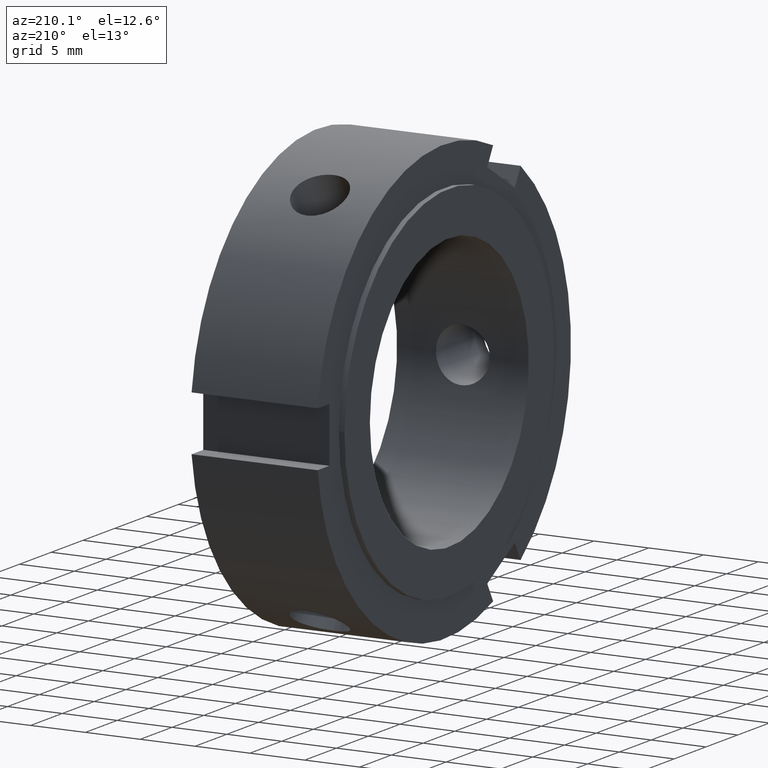
[diagram: clean part render]
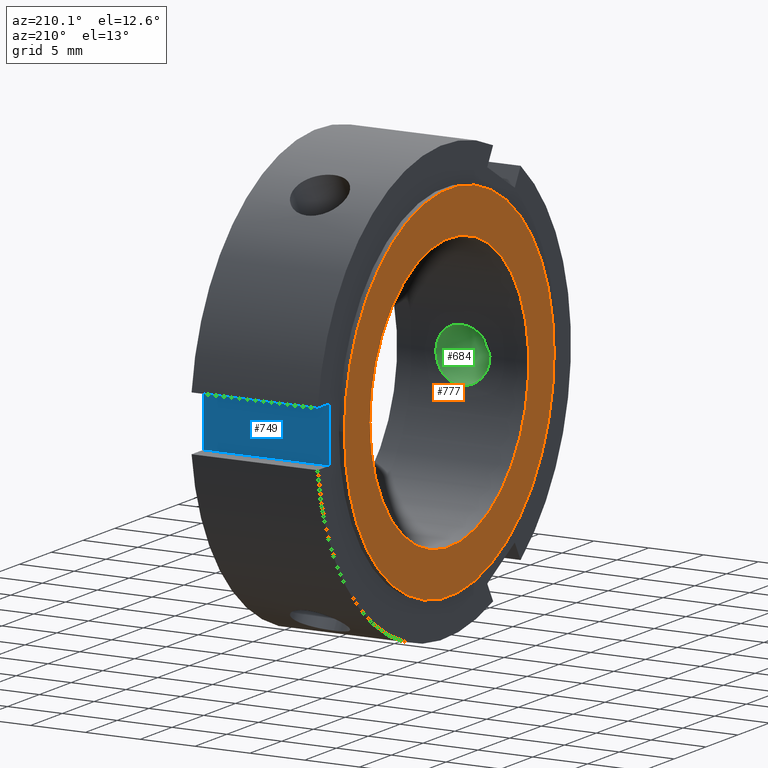
[diagram: same view with three faces highlighted in distinct colors, each labeled with its STEP entity id]
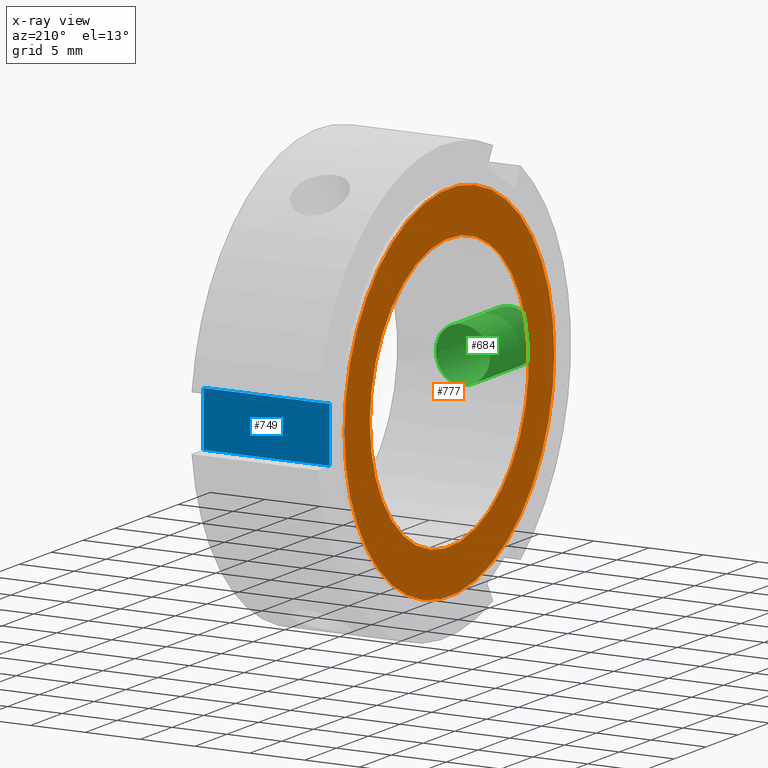
[diagram: x-ray of the same camera — body ghosted, the three highlighted faces saturated]
A machine part, auxiliary view with three faces highlighted in distinct colors.
The next image is the same camera in x-ray (body ghosted, the three faces saturated) — at least one of them is partly hidden behind the body in this view.
Their STEP definitions:

[orange] entity #777 — the highlighted planar face has unit normal (-1, 0, 0).
#750=CARTESIAN_POINT('',(-3.687082E-015,14.500000000000000,0.0));
#751=DIRECTION('',(-1.0,0.0,0.0));
#752=DIRECTION('',(0.0,0.0,1.0));
#753=AXIS2_PLACEMENT_3D('',#750,#751,#752);
#754=PLANE('',#753);
#755=CARTESIAN_POINT('',(-4.440892E-015,16.500000000000000,0.0));
#756=VERTEX_POINT('',#755);
#757=CARTESIAN_POINT('',(-4.440892E-015,0.0,0.0));
#758=DIRECTION('',(1.0,0.0,0.0));
#759=DIRECTION('',(0.0,1.0,0.0));
#760=AXIS2_PLACEMENT_3D('',#757,#758,#759);
#761=CIRCLE('',#760,16.500000000000000);
#762=EDGE_CURVE('',#756,#756,#761,.T.);
#763=ORIENTED_EDGE('',*,*,#762,.F.);
#764=EDGE_LOOP('',(#763));
#765=FACE_OUTER_BOUND('',#764,.T.);
#766=CARTESIAN_POINT('',(-2.933272E-015,12.500000000000000,0.0));
#767=VERTEX_POINT('',#766);
#768=CARTESIAN_POINT('',(-2.933851E-015,0.0,0.0));
#769=DIRECTION('',(1.0,0.0,0.0));
#770=DIRECTION('',(0.0,1.0,0.0));
#771=AXIS2_PLACEMENT_3D('',#768,#769,#770);
#772=CIRCLE('',#771,12.500000000000000);
#773=EDGE_CURVE('',#767,#767,#772,.T.);
#774=ORIENTED_EDGE('',*,*,#773,.T.);
#775=EDGE_LOOP('',(#774));
#776=FACE_BOUND('',#775,.T.);
#777=ADVANCED_FACE('',(#765,#776),#754,.T.);

[blue] entity #749 — the highlighted planar face has unit normal (0, -1, 0).
#465=CARTESIAN_POINT('',(11.999999999999996,18.0,-2.500000000000000));
#466=VERTEX_POINT('',#465);
#473=CARTESIAN_POINT('',(11.999999999999996,18.0,2.500000000000000));
#474=VERTEX_POINT('',#473);
#475=CARTESIAN_POINT('',(11.999999999999996,18.0,-2.499999999999999));
#476=DIRECTION('',(0.0,0.0,1.0));
#477=VECTOR('',#476,4.999999999999998);
#478=LINE('',#475,#477);
#479=EDGE_CURVE('',#466,#474,#478,.T.);
#690=CARTESIAN_POINT('',(0.499999999999998,18.0,-2.500000000000000));
#691=VERTEX_POINT('',#690);
#698=CARTESIAN_POINT('',(11.999999999999996,18.0,-2.500000000000000));
#699=DIRECTION('',(-1.0,0.0,0.0));
#700=VECTOR('',#699,11.500000000000000);
#701=LINE('',#698,#700);
#702=EDGE_CURVE('',#466,#691,#701,.T.);
#714=CARTESIAN_POINT('',(0.499999999999998,18.0,2.500000000000000));
#715=VERTEX_POINT('',#714);
#724=CARTESIAN_POINT('',(11.999999999999996,18.0,2.500000000000000));
#725=DIRECTION('',(-1.0,0.0,0.0));
#726=VECTOR('',#725,11.500000000000000);
#727=LINE('',#724,#726);
#728=EDGE_CURVE('',#474,#715,#727,.T.);
#733=CARTESIAN_POINT('',(11.999999999999996,18.0,2.500000000000000));
#734=DIRECTION('',(0.0,-1.0,0.0));
#735=DIRECTION('',(0.0,0.0,-1.0));
#736=AXIS2_PLACEMENT_3D('',#733,#734,#735);
#737=PLANE('',#736);
#738=CARTESIAN_POINT('',(0.499999999999997,18.0,2.500000000000000));
#739=DIRECTION('',(0.0,0.0,-1.0));
#740=VECTOR('',#739,4.999999999999998);
#741=LINE('',#738,#740);
#742=EDGE_CURVE('',#715,#691,#741,.T.);
#743=ORIENTED_EDGE('',*,*,#742,.F.);
#744=ORIENTED_EDGE('',*,*,#728,.F.);
#745=ORIENTED_EDGE('',*,*,#479,.F.);
#746=ORIENTED_EDGE('',*,*,#702,.T.);
#747=EDGE_LOOP('',(#743,#744,#745,#746));
#748=FACE_OUTER_BOUND('',#747,.T.);
#749=ADVANCED_FACE('',(#748),#737,.F.);

[green] entity #684 — the highlighted cylindrical surface (bore or boss wall) has radius 2.4585 mm, axis along (0, 1, 0).
#593=CARTESIAN_POINT('',(5.999999999999995,-19.848319267635734,2.458500000000000));
#594=VERTEX_POINT('',#593);
#595=CARTESIAN_POINT('',(5.999999999999995,-19.848319267635734,2.458500000000000));
#596=CARTESIAN_POINT('',(6.309031728745285,-19.848319267635734,2.458500000000000));
#597=CARTESIAN_POINT('',(6.638446184143287,-19.856281129211645,2.396675869631871));
#598=CARTESIAN_POINT('',(7.244075995513194,-19.884969489722053,2.145680263819293));
#599=CARTESIAN_POINT('',(7.520318291020636,-19.905274134097585,1.956525752073613));
#600=CARTESIAN_POINT('',(7.956524048848388,-19.943333666631197,1.520319994245860));
#601=CARTESIAN_POINT('',(8.145679894707632,-19.963571166133271,1.244076957798581));
#602=CARTESIAN_POINT('',(8.396676480061615,-19.992105682537517,0.638444639579012));
#603=CARTESIAN_POINT('',(8.458499999999994,-19.999999999999996,0.309029315441160));
#604=CARTESIAN_POINT('',(8.458499999999994,-19.999999999999996,-0.309029315441160));
#605=CARTESIAN_POINT('',(8.396676480061615,-19.992105682537517,-0.638444639579012));
#606=CARTESIAN_POINT('',(8.145679894707632,-19.963571166133271,-1.244076957798581));
#607=CARTESIAN_POINT('',(7.956524048848390,-19.943333666631197,-1.520319994245860));
#608=CARTESIAN_POINT('',(7.520318291020636,-19.905274134097585,-1.956525752073613));
#609=CARTESIAN_POINT('',(7.244075995513191,-19.884969489722053,-2.145680263819294));
#610=CARTESIAN_POINT('',(6.638446184143286,-19.856281129211645,-2.396675869631872));
#611=CARTESIAN_POINT('',(6.309031728745285,-19.848319267635731,-2.458500000000000));
#612=CARTESIAN_POINT('',(5.690968271254704,-19.848319267635734,-2.458500000000000));
#613=CARTESIAN_POINT('',(5.361553815856701,-19.856281129211645,-2.396675869631871));
#614=CARTESIAN_POINT('',(4.755924004486796,-19.884969489722053,-2.145680263819293));
#615=CARTESIAN_POINT('',(4.479681708979354,-19.905274134097585,-1.956525752073614));
#616=CARTESIAN_POINT('',(4.043475951151599,-19.943333666631197,-1.520319994245860));
#617=CARTESIAN_POINT('',(3.854320105292358,-19.963571166133271,-1.244076957798581));
#618=CARTESIAN_POINT('',(3.603323519938373,-19.992105682537517,-0.638444639579012));
#619=CARTESIAN_POINT('',(3.541499999999994,-19.999999999999996,-0.309029315441161));
#620=CARTESIAN_POINT('',(3.541499999999994,-19.999999999999996,0.309029315441159));
#621=CARTESIAN_POINT('',(3.603323519938373,-19.992105682537517,0.638444639579011));
#622=CARTESIAN_POINT('',(3.854320105292358,-19.963571166133271,1.244076957798580));
#623=CARTESIAN_POINT('',(4.043475951151599,-19.943333666631197,1.520319994245859));
#624=CARTESIAN_POINT('',(4.479681708979353,-19.905274134097589,1.956525752073613));
#625=CARTESIAN_POINT('',(4.755924004486795,-19.884969489722053,2.145680263819293));
#626=CARTESIAN_POINT('',(5.361553815856702,-19.856281129211645,2.396675869631871));
#627=CARTESIAN_POINT('',(5.690968271254703,-19.848319267635734,2.458500000000000));
#628=CARTESIAN_POINT('',(5.999999999999995,-19.848319267635734,2.458500000000000));
#629=B_SPLINE_CURVE_WITH_KNOTS('',3,(#595,#596,#597,#598,#599,#600,#601,#602,#603,#604,#605,#606,#607,#608,#609,#610,#611,#612,#613,#614,#615,#616,#617,#618,#619,#620,#621,#622,#623,#624,#625,#626,#627,#628),.UNSPECIFIED.,.T.,.U.,(4,2,2,2,2,2,2,2,2,2,2,2,2,2,2,2,4),(0.0,0.092709518623587,0.185419037247174,0.278127831879522,0.370836626511870,0.463545421144218,0.556254215776567,0.648963734400154,0.741673253023741,0.834382771647328,0.927092290270916,1.019801084903264,1.112509879535612,1.205218674167960,1.297927468800308,1.390636987423895,1.483346506047482),.UNSPECIFIED.);
#630=EDGE_CURVE('',#594,#594,#629,.T.);
#635=CARTESIAN_POINT('',(5.999999999999995,-57.718934443728045,0.0));
#636=DIRECTION('',(0.0,1.0,0.0));
#637=DIRECTION('',(-1.0,0.0,0.0));
#638=AXIS2_PLACEMENT_3D('',#635,#636,#637);
#639=CYLINDRICAL_SURFACE('',#638,2.458500000000000);
#640=ORIENTED_EDGE('',*,*,#630,.F.);
#641=EDGE_LOOP('',(#640));
#642=FACE_OUTER_BOUND('',#641,.T.);
#643=CARTESIAN_POINT('',(5.999999999999995,-12.255846676178679,2.458500000000000));
#644=VERTEX_POINT('',#643);
#645=CARTESIAN_POINT('',(5.999999999999993,-12.255846676178679,2.458500000000000));
#646=CARTESIAN_POINT('',(5.690427554871604,-12.255846676178679,2.458500000000000));
#647=CARTESIAN_POINT('',(5.360789519550147,-12.268791974914192,2.396466218030408));
#648=CARTESIAN_POINT('',(4.755315289629568,-12.315190047736177,2.145320645089050));
#649=CARTESIAN_POINT('',(4.479407327491901,-12.347933675257563,1.956251370586161));
#650=CARTESIAN_POINT('',(4.043760030461277,-12.409115345590514,1.520604073555537));
#651=CARTESIAN_POINT('',(3.854681824349835,-12.441580363707757,1.244691264098423));
#652=CARTESIAN_POINT('',(3.603529769993216,-12.487337641728416,0.639200207892524));
#653=CARTESIAN_POINT('',(3.541499999999994,-12.500000000000000,0.309556242306548));
#654=CARTESIAN_POINT('',(3.541499999999994,-12.500000000000000,-0.309556242306548));
#655=CARTESIAN_POINT('',(3.603529769993217,-12.487337641728413,-0.639200207892525));
#656=CARTESIAN_POINT('',(3.854681824349835,-12.441580363707756,-1.244691264098424));
#657=CARTESIAN_POINT('',(4.043760030461277,-12.409115345590514,-1.520604073555537));
#658=CARTESIAN_POINT('',(4.479407327491901,-12.347933675257563,-1.956251370586161));
#659=CARTESIAN_POINT('',(4.755315289629568,-12.315190047736177,-2.145320645089050));
#660=CARTESIAN_POINT('',(5.360789519550147,-12.268791974914192,-2.396466218030408));
#661=CARTESIAN_POINT('',(5.690427554871604,-12.255846676178679,-2.458500000000000));
#662=CARTESIAN_POINT('',(6.309572445128384,-12.255846676178679,-2.458500000000000));
#663=CARTESIAN_POINT('',(6.639210480449842,-12.268791974914192,-2.396466218030408));
#664=CARTESIAN_POINT('',(7.244684710370422,-12.315190047736177,-2.145320645089050));
#665=CARTESIAN_POINT('',(7.520592672508086,-12.347933675257563,-1.956251370586161));
#666=CARTESIAN_POINT('',(7.956239969538713,-12.409115345590514,-1.520604073555537));
#667=CARTESIAN_POINT('',(8.145318175650155,-12.441580363707756,-1.244691264098423));
#668=CARTESIAN_POINT('',(8.396470230006774,-12.487337641728413,-0.639200207892524));
#669=CARTESIAN_POINT('',(8.458499999999994,-12.500000000000000,-0.309556242306548));
#670=CARTESIAN_POINT('',(8.458499999999994,-12.500000000000000,0.309556242306548));
#671=CARTESIAN_POINT('',(8.396470230006774,-12.487337641728413,0.639200207892524));
#672=CARTESIAN_POINT('',(8.145318175650155,-12.441580363707756,1.244691264098423));
#673=CARTESIAN_POINT('',(7.956239969538713,-12.409115345590514,1.520604073555537));
#674=CARTESIAN_POINT('',(7.520592672508089,-12.347933675257563,1.956251370586162));
#675=CARTESIAN_POINT('',(7.244684710370422,-12.315190047736177,2.145320645089050));
#676=CARTESIAN_POINT('',(6.639210480449842,-12.268791974914192,2.396466218030408));
#677=CARTESIAN_POINT('',(6.309572445128384,-12.255846676178679,2.458500000000000));
#678=CARTESIAN_POINT('',(5.999999999999995,-12.255846676178679,2.458500000000000));
#679=B_SPLINE_CURVE_WITH_KNOTS('',3,(#645,#646,#647,#648,#649,#650,#651,#652,#653,#654,#655,#656,#657,#658,#659,#660,#661,#662,#663,#664,#665,#666,#667,#668,#669,#670,#671,#672,#673,#674,#675,#676,#677,#678),.UNSPECIFIED.,.T.,.U.,(4,2,2,2,2,2,2,2,2,2,2,2,2,2,2,2,4),(0.0,0.092871733538517,0.185743467077034,0.278610339768998,0.371477212460962,0.464344085152927,0.557210957844891,0.650082691383408,0.742954424921925,0.835826158460441,0.928697891998958,1.021564764690923,1.114431637382887,1.207298510074851,1.300165382766816,1.393037116305332,1.485908849843849),.UNSPECIFIED.);
#680=EDGE_CURVE('',#644,#644,#679,.T.);
#681=ORIENTED_EDGE('',*,*,#680,.F.);
#682=EDGE_LOOP('',(#681));
#683=FACE_BOUND('',#682,.T.);
#684=ADVANCED_FACE('',(#642,#683),#639,.F.);